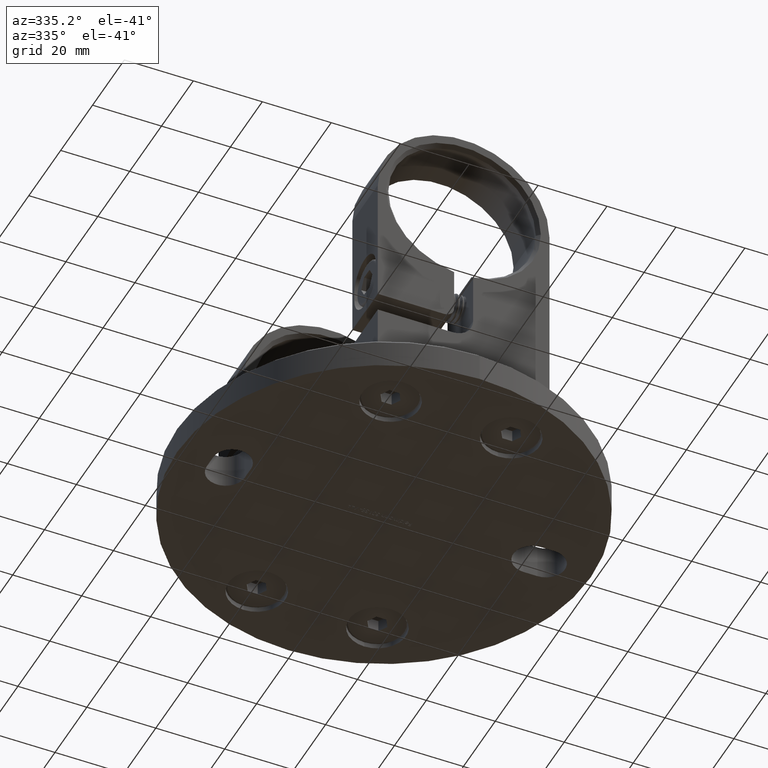
[diagram: clean part render]
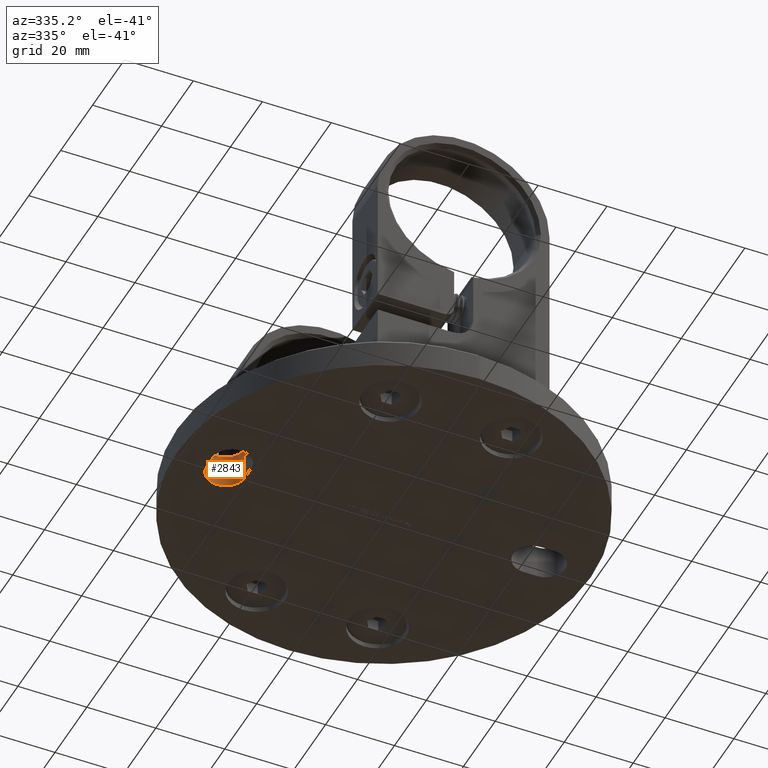
[diagram: same view with one face highlighted and labeled with its STEP entity id]
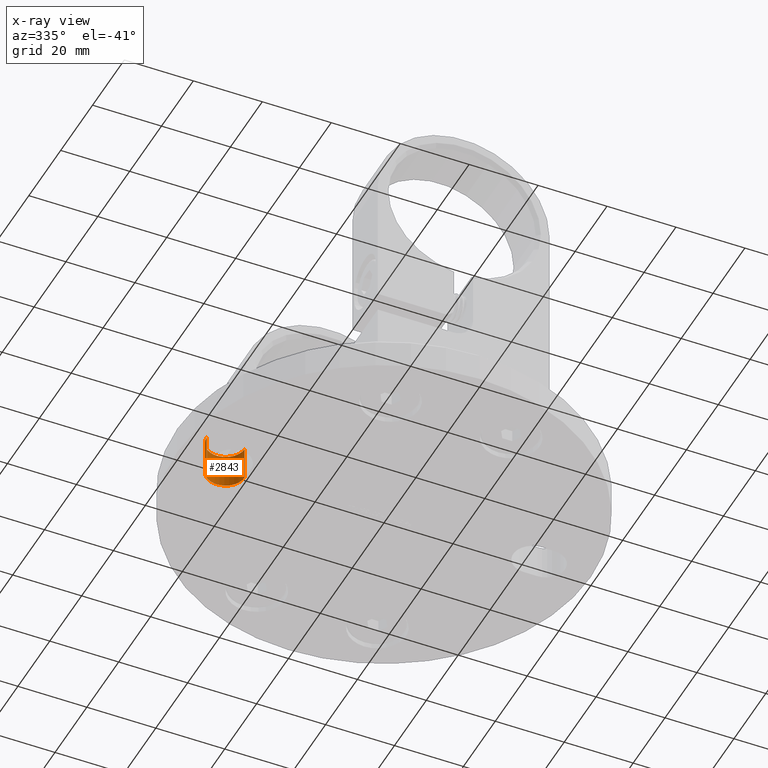
[diagram: x-ray of the same camera — body ghosted, the highlighted face saturated]
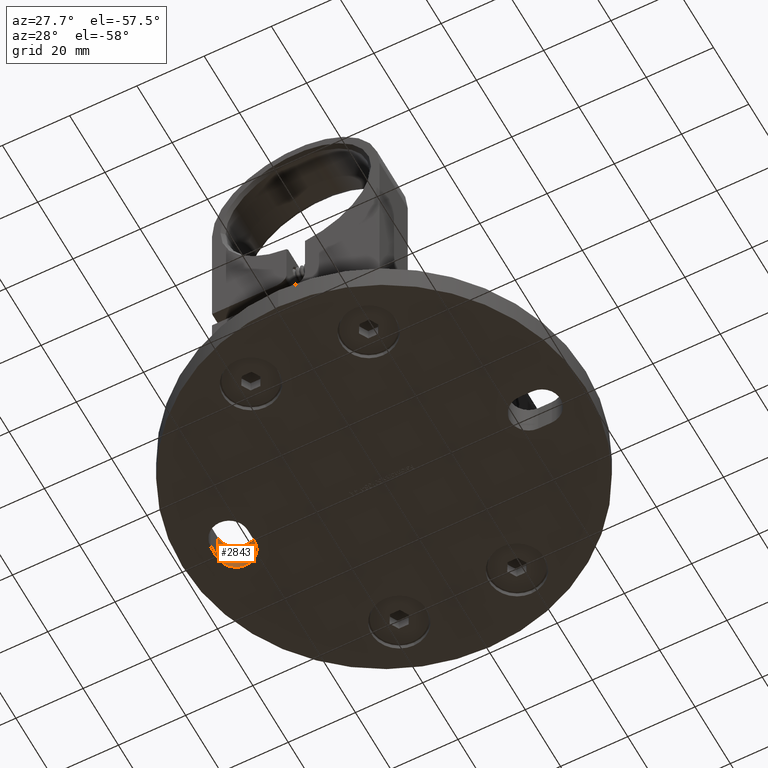
[diagram: same view with one face highlighted and labeled with its STEP entity id]
A machine part, auxiliary view. The second image highlights one B-rep face of the part: STEP entity #2843.
The next image is the same camera in x-ray: the body ghosted, the highlighted face saturated — about 0% of this face is hidden behind the body in this view.
A second angle (auxiliary view) of the same face is appended — the face is thin or edge-on in the first view.
In plain terms, the highlighted cylindrical surface (edge-blend (fillet) strip) has radius 5.5 mm, axis along (0, 0, 1).
Its self-contained STEP definition (entity closure, byte-faithful):
#187 = DIRECTION ( 'NONE',  ( 0.0000000000000000000, 0.0000000000000000000, 1.000000000000000000 ) ) ;
#922 = EDGE_CURVE ( 'NONE', #5485, #16139, #8007, .T. ) ;
#1002 = DIRECTION ( 'NONE',  ( 0.0000000000000000000, 1.000000000000000000, 0.0000000000000000000 ) ) ;
#1405 = ORIENTED_EDGE ( 'NONE', *, *, #922, .F. ) ;
#1605 = EDGE_LOOP ( 'NONE', ( #22160, #1405, #20952, #1793 ) ) ;
#1793 = ORIENTED_EDGE ( 'NONE', *, *, #14178, .T. ) ;
#2040 = VERTEX_POINT ( 'NONE', #5821 ) ;
#2237 = CARTESIAN_POINT ( 'NONE',  ( -45.00000000000000000, 10.00000000000000000, -1.999999999999998200 ) ) ;
#2843 = ADVANCED_FACE ( 'NONE', ( #15357 ), #21951, .F. ) ;
#3136 = VERTEX_POINT ( 'NONE', #9603 ) ;
#4138 = CARTESIAN_POINT ( 'NONE',  ( -50.49999999999998600, 0.0000000000000000000, -2.000000000000003600 ) ) ;
#4690 = EDGE_CURVE ( 'NONE', #3136, #16139, #15970, .T. ) ;
#5485 = VERTEX_POINT ( 'NONE', #4138 ) ;
#5821 = CARTESIAN_POINT ( 'NONE',  ( -39.50000000000000700, 0.0000000000000000000, -2.000000000000003600 ) ) ;
#6517 = CIRCLE ( 'NONE', #20003, 5.499999999999991100 ) ;
#8007 = LINE ( 'NONE', #21966, #16265 ) ;
#8977 = CARTESIAN_POINT ( 'NONE',  ( -39.50000000000000700, 0.0000000000000000000, -2.000000000000003600 ) ) ;
#9056 = DIRECTION ( 'NONE',  ( 0.0000000000000000000, 1.000000000000000000, 0.0000000000000000000 ) ) ;
#9603 = CARTESIAN_POINT ( 'NONE',  ( -39.50000000000000700, 10.00000000000000000, -2.000000000000003600 ) ) ;
#9799 = LINE ( 'NONE', #8977, #18580 ) ;
#9937 = DIRECTION ( 'NONE',  ( 0.0000000000000000000, 1.000000000000000000, 0.0000000000000000000 ) ) ;
#10832 = DIRECTION ( 'NONE',  ( 0.0000000000000000000, 1.000000000000000000, 0.0000000000000000000 ) ) ;
#11624 = DIRECTION ( 'NONE',  ( 0.0000000000000000000, 0.0000000000000000000, 1.000000000000000000 ) ) ;
#12106 = EDGE_CURVE ( 'NONE', #2040, #5485, #6517, .T. ) ;
#12805 = CARTESIAN_POINT ( 'NONE',  ( -50.49999999999998600, 10.00000000000000000, -2.000000000000003600 ) ) ;
#13840 = DIRECTION ( 'NONE',  ( 0.0000000000000000000, 1.000000000000000000, 0.0000000000000000000 ) ) ;
#14178 = EDGE_CURVE ( 'NONE', #2040, #3136, #9799, .T. ) ;
#15357 = FACE_OUTER_BOUND ( 'NONE', #1605, .T. ) ;
#15970 = CIRCLE ( 'NONE', #18605, 5.499999999999991100 ) ;
#16139 = VERTEX_POINT ( 'NONE', #12805 ) ;
#16265 = VECTOR ( 'NONE', #1002, 1000.000000000000000 ) ;
#16826 = AXIS2_PLACEMENT_3D ( 'NONE', #22473, #13840, #187 ) ;
#18052 = DIRECTION ( 'NONE',  ( 0.0000000000000000000, 0.0000000000000000000, 1.000000000000000000 ) ) ;
#18580 = VECTOR ( 'NONE', #9056, 1000.000000000000000 ) ;
#18605 = AXIS2_PLACEMENT_3D ( 'NONE', #2237, #10832, #18052 ) ;
#20003 = AXIS2_PLACEMENT_3D ( 'NONE', #22093, #9937, #11624 ) ;
#20952 = ORIENTED_EDGE ( 'NONE', *, *, #12106, .F. ) ;
#21951 = CYLINDRICAL_SURFACE ( 'NONE', #16826, 5.499999999999991100 ) ;
#21966 = CARTESIAN_POINT ( 'NONE',  ( -50.49999999999998600, 0.0000000000000000000, -2.000000000000003600 ) ) ;
#22093 = CARTESIAN_POINT ( 'NONE',  ( -45.00000000000000000, 0.0000000000000000000, -1.999999999999998200 ) ) ;
#22160 = ORIENTED_EDGE ( 'NONE', *, *, #4690, .T. ) ;
#22473 = CARTESIAN_POINT ( 'NONE',  ( -45.00000000000000000, 0.0000000000000000000, -1.999999999999998200 ) ) ;